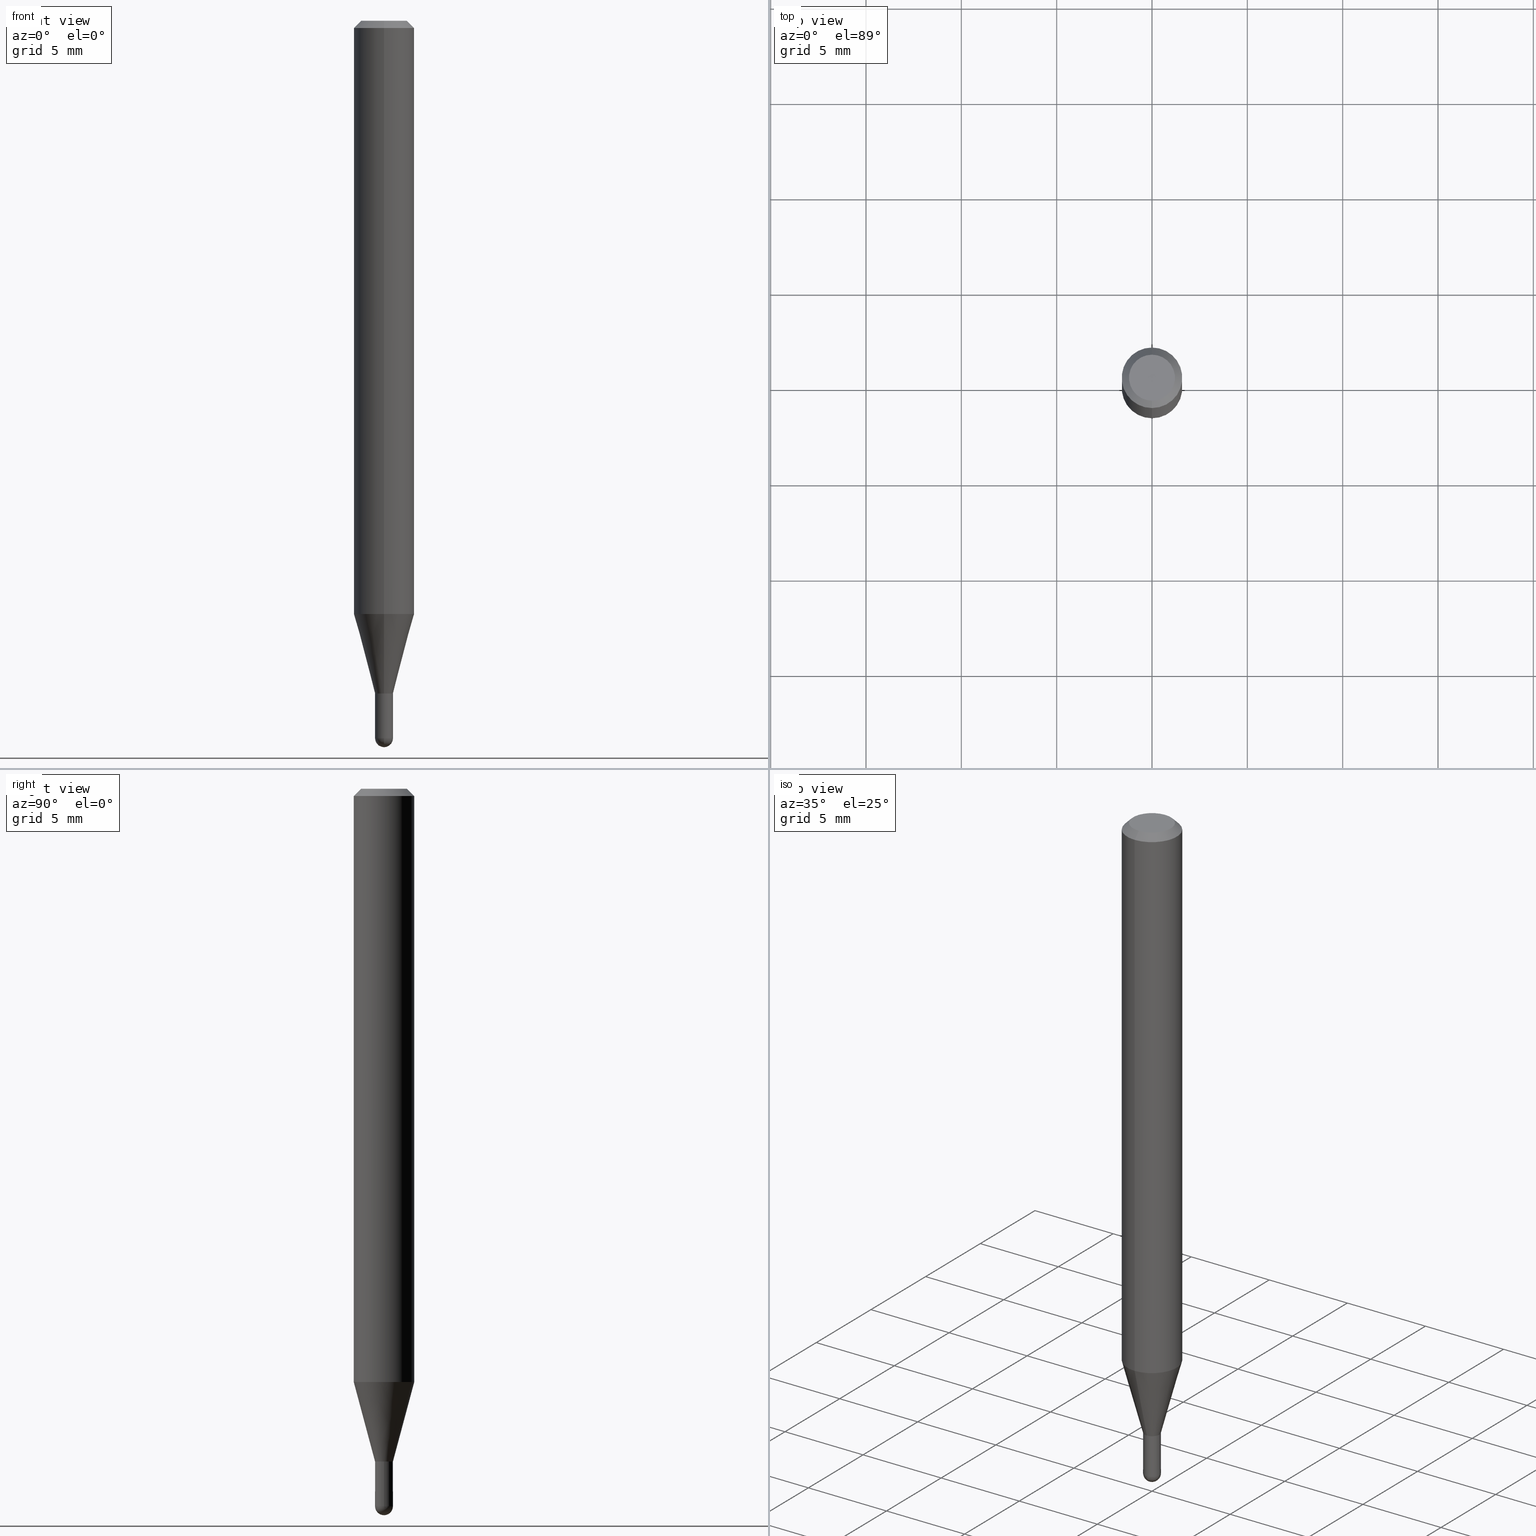
[diagram: canonical four-view strip — front | top / right | iso, engineering-drawing reading convention]
A machine part, canonical four-view strip (front | top / right | iso — engineering-drawing reading convention). The complete STEP part file that produces these views, byte-faithful:
ISO-10303-21;
HEADER;
FILE_DESCRIPTION (( 'STEP AP203' ),
    '1' );
FILE_NAME ('01460.STEP',
    '2024-03-07T21:11:35',
    ( '' ),
    ( '' ),
    'SwSTEP 2.0',
    'SolidWorks 2023',
    '' );
FILE_SCHEMA (( 'CONFIG_CONTROL_DESIGN' ));
ENDSEC;

DATA;
#1 = DIRECTION ( 'NONE',  ( -6.982962677686265922E-15, -1.000000000000000000, 0.000000000000000000 ) ) ;
#2 = LINE ( 'NONE', #398, #367 ) ;
#3 = ADVANCED_FACE ( 'NONE', ( #72 ), #155, .F. ) ;
#4 = CARTESIAN_POINT ( 'NONE',  ( 3.396760682503241373E-29, -4.849661120056686555E-15, -1.389000000000000234 ) ) ;
#5 = FACE_OUTER_BOUND ( 'NONE', #456, .T. ) ;
#6 = MANIFOLD_SOLID_BREP ( 'Body-Move/Copy2[2]', #452 ) ;
#7 = CARTESIAN_POINT ( 'NONE',  ( -4.364351673553618406E-16, -0.06250000000000428824, -1.224789764466974296 ) ) ;
#8 = AXIS2_PLACEMENT_3D ( 'NONE', #188, #354, #32 ) ;
#9 = DIRECTION ( 'NONE',  ( -2.445468806185136597E-29, 3.491481338843145583E-15, 1.000000000000000000 ) ) ;
#10 = AXIS2_PLACEMENT_3D ( 'NONE', #369, #55, #411 ) ;
#11 = CC_DESIGN_APPROVAL ( #257, ( #79 ) ) ;
#12 = EDGE_CURVE ( 'NONE', #290, #351, #2, .T. ) ;
#13 = CARTESIAN_POINT ( 'NONE',  ( 3.396760682503241373E-29, -4.849661120056686555E-15, -1.389000000000000234 ) ) ;
#14 = ORIENTED_EDGE ( 'NONE', *, *, #421, .T. ) ;
#15 = DIRECTION ( 'NONE',  ( -1.000000000000000000, 6.982962677686265922E-15, -4.876176775795935793E-29 ) ) ;
#16 = APPROVAL_ROLE ( '' ) ;
#17 = DIRECTION ( 'NONE',  ( -2.445468806185136597E-29, 3.491481338843145583E-15, 1.000000000000000000 ) ) ;
#18 = APPROVAL_STATUS ( 'not_yet_approved' ) ;
#19 = DIRECTION ( 'NONE',  ( -4.937700262164674260E-15, -0.7071067811865632269, 0.7071067811865319186 ) ) ;
#20 = APPROVAL ( #64, 'UNSPECIFIED' ) ;
#21 = ORIENTED_EDGE ( 'NONE', *, *, #482, .T. ) ;
#22 = CC_DESIGN_DATE_AND_TIME_ASSIGNMENT ( #263, #223, ( #79 ) ) ;
#23 = VECTOR ( 'NONE', #125, 39.37007874015748143 ) ;
#24 = CARTESIAN_POINT ( 'NONE',  ( 3.840629472727447874E-16, 0.04749999999999999362, -1.747056831868805136E-16 ) ) ;
#25 = CIRCLE ( 'NONE', #285, 0.01850000000000018296 ) ;
#26 = ORIENTED_EDGE ( 'NONE', *, *, #341, .T. ) ;
#27 = DIRECTION ( 'NONE',  ( -2.445472053638043115E-29, 3.491476688305749916E-15, 1.000000000000000000 ) ) ;
#28 = ORIENTED_EDGE ( 'NONE', *, *, #374, .T. ) ;
#29 = DIRECTION ( 'NONE',  ( 2.445472053638043115E-29, -3.491476688305749916E-15, -1.000000000000000000 ) ) ;
#30 = CALENDAR_DATE ( 2024, 7, 3 ) ;
#31 = CARTESIAN_POINT ( 'NONE',  ( -1.291848095371618790E-16, -0.01850000000000483549, -1.388500000000000290 ) ) ;
#32 = DIRECTION ( 'NONE',  ( -6.982962677686265922E-15, -1.000000000000000000, 3.491476688305749522E-15 ) ) ;
#33 = COORDINATED_UNIVERSAL_TIME_OFFSET ( 5, 0, .BEHIND. ) ;
#34 = DIRECTION ( 'NONE',  ( -6.982962677686266711E-15, -1.000000000000000000, 0.000000000000000000 ) ) ;
#35 = AXIS2_PLACEMENT_3D ( 'NONE', #260, #9, #171 ) ;
#36 = LOCAL_TIME ( 16, 11, 35.00000000000000000, #215 ) ;
#37 = EDGE_CURVE ( 'NONE', #161, #433, #406, .T. ) ;
#38 = CARTESIAN_POINT ( 'NONE',  ( 2.166820415418826865E-46, -3.093637057485499121E-32, -8.860540492357393280E-18 ) ) ;
#39 = LINE ( 'NONE', #428, #151 ) ;
#40 = EDGE_LOOP ( 'NONE', ( #227, #364, #70, #203, #119 ) ) ;
#41 = DIRECTION ( 'NONE',  ( -2.445468806185136877E-29, 3.491481338843145188E-15, 1.000000000000000000 ) ) ;
#42 = DIRECTION ( 'NONE',  ( -6.982962677686265922E-15, -1.000000000000000000, 3.483106191921935554E-15 ) ) ;
#43 = ORIENTED_EDGE ( 'NONE', *, *, #133, .F. ) ;
#44 = DIRECTION ( 'NONE',  ( -6.982962677686265922E-15, -1.000000000000000000, 0.000000000000000000 ) ) ;
#45 = AXIS2_PLACEMENT_3D ( 'NONE', #169, #439, #239 ) ;
#46 = VERTEX_POINT ( 'NONE', #184 ) ;
#47 = LOCAL_TIME ( 16, 11, 35.00000000000000000, #33 ) ;
#48 = CARTESIAN_POINT ( 'NONE',  ( 3.396756171791154536E-29, -4.849667579653129396E-15, -1.389000000000000234 ) ) ;
#49 = ORIENTED_EDGE ( 'NONE', *, *, #296, .T. ) ;
#50 = VERTEX_POINT ( 'NONE', #212 ) ;
#51 = CYLINDRICAL_SURFACE ( 'NONE', #77, 0.06250000000000000000 ) ;
#52 = ADVANCED_FACE ( 'NONE', ( #297 ), #74, .F. ) ;
#53 = VECTOR ( 'NONE', #19, 39.37007874015748143 ) ;
#54 = VECTOR ( 'NONE', #41, 39.37007874015748143 ) ;
#55 = DIRECTION ( 'NONE',  ( -2.445468806185136597E-29, 3.491481338843145583E-15, 1.000000000000000000 ) ) ;
#56 = APPLICATION_PROTOCOL_DEFINITION ( 'international standard', 'config_control_design', 1994, #304 ) ;
#57 = ORIENTED_EDGE ( 'NONE', *, *, #288, .F. ) ;
#58 = ADVANCED_FACE ( 'NONE', ( #5 ), #137, .T. ) ;
#59 = AXIS2_PLACEMENT_3D ( 'NONE', #360, #504, #396 ) ;
#60 = AXIS2_PLACEMENT_3D ( 'NONE', #264, #502, #506 ) ;
#61 = ORGANIZATION ( 'UNSPECIFIED', 'UNSPECIFIED', '' ) ;
#62 = PERSON_AND_ORGANIZATION ( #214, #61 ) ;
#63 = ADVANCED_FACE ( 'NONE', ( #231 ), #471, .T. ) ;
#64 = APPROVAL_STATUS ( 'not_yet_approved' ) ;
#65 = AXIS2_PLACEMENT_3D ( 'NONE', #128, #282, #167 ) ;
#66 = PERSON_AND_ORGANIZATION ( #214, #61 ) ;
#67 = FACE_OUTER_BOUND ( 'NONE', #201, .T. ) ;
#68 = ORIENTED_EDGE ( 'NONE', *, *, #468, .F. ) ;
#69 = DIRECTION ( 'NONE',  ( -6.982962677686266711E-15, -1.000000000000000000, 3.491476688305750311E-15 ) ) ;
#70 = ORIENTED_EDGE ( 'NONE', *, *, #497, .F. ) ;
#71 = CARTESIAN_POINT ( 'NONE',  ( 3.396760682503241373E-29, -4.849661120056686555E-15, -1.389000000000000234 ) ) ;
#72 = FACE_OUTER_BOUND ( 'NONE', #464, .T. ) ;
#73 = ADVANCED_FACE ( 'NONE', ( #500 ), #276, .T. ) ;
#74 = PLANE ( 'NONE',  #386 ) ;
#75 = DIRECTION ( 'NONE',  ( -4.851104656540964275E-15, -0.7071067811865500152, -0.7071067811865450192 ) ) ;
#76 = CARTESIAN_POINT ( 'NONE',  ( 0.000000000000000000, 0.000000000000000000, 0.000000000000000000 ) ) ;
#77 = AXIS2_PLACEMENT_3D ( 'NONE', #287, #94, #407 ) ;
#78 = CARTESIAN_POINT ( 'NONE',  ( 1.314504061156179855E-16, 0.01849999999999992623, -6.459231873365611550E-17 ) ) ;
#79 = SECURITY_CLASSIFICATION ( '', '', #342 ) ;
#80 = ORIENTED_EDGE ( 'NONE', *, *, #315, .T. ) ;
#81 = LINE ( 'NONE', #236, #53 ) ;
#82 = DIRECTION ( 'NONE',  ( -2.445472053638043115E-29, 3.491476688305749916E-15, 1.000000000000000000 ) ) ;
#83 = EDGE_LOOP ( 'NONE', ( #163, #343, #132, #467 ) ) ;
#84 = EDGE_CURVE ( 'NONE', #196, #181, #493, .T. ) ;
#85 = SPHERICAL_SURFACE ( 'NONE', #425, 0.01850000000000018296 ) ;
#86 = ORIENTED_EDGE ( 'NONE', *, *, #37, .T. ) ;
#87 = DIRECTION ( 'NONE',  ( -2.445472053638043115E-29, 3.491476688305749916E-15, 1.000000000000000000 ) ) ;
#88 = ORIENTED_EDGE ( 'NONE', *, *, #149, .T. ) ;
#89 = AXIS2_PLACEMENT_3D ( 'NONE', #71, #269, #118 ) ;
#90 = DIRECTION ( 'NONE',  ( -2.445472053638042835E-29, 3.491476688305749916E-15, 1.000000000000000000 ) ) ;
#91 = CARTESIAN_POINT ( 'NONE',  ( -1.291848095371614353E-16, -0.01850000000000477304, -1.389000000000000234 ) ) ;
#92 = ORIENTED_EDGE ( 'NONE', *, *, #490, .F. ) ;
#93 = DIRECTION ( 'NONE',  ( 1.000000000000000000, -6.982962677686253300E-15, 0.000000000000000000 ) ) ;
#94 = DIRECTION ( 'NONE',  ( -2.445472053638043115E-29, 3.491476688305749916E-15, 1.000000000000000000 ) ) ;
#95 = DIRECTION ( 'NONE',  ( -1.807323732225379838E-15, -0.2588190451025252914, 0.9659258262890670910 ) ) ;
#96 = ORIENTED_EDGE ( 'NONE', *, *, #133, .T. ) ;
#97 = CONICAL_SURFACE ( 'NONE', #126, 0.01849999999999992623, 0.2617993877991576235 ) ;
#98 = APPROVAL_PERSON_ORGANIZATION ( #182, #330, #487 ) ;
#99 = EDGE_LOOP ( 'NONE', ( #417, #229, #187, #225 ) ) ;
#100 = ADVANCED_FACE ( 'NONE', ( #123 ), #338, .T. ) ;
#101 = DATE_AND_TIME ( #295, #387 ) ;
#102 = DIRECTION ( 'NONE',  ( 0.000000000000000000, 0.000000000000000000, 1.000000000000000000 ) ) ;
#103 = CIRCLE ( 'NONE', #395, 0.06250000000000000000 ) ;
#104 = AXIS2_PLACEMENT_3D ( 'NONE', #404, #87, #44 ) ;
#105 = DIRECTION ( 'NONE',  ( 1.000000000000000000, 0.000000000000000000, 0.000000000000000000 ) ) ;
#106 = FACE_OUTER_BOUND ( 'NONE', #498, .T. ) ;
#107 = PRODUCT_DEFINITION ( 'UNKNOWN', '', #420, #113 ) ;
#108 = EDGE_LOOP ( 'NONE', ( #403, #68, #457, #272 ) ) ;
#109 = CARTESIAN_POINT ( 'NONE',  ( 4.440892098500927901E-16, 0.06249999999999995837, -0.01500000000000022669 ) ) ;
#110 = CARTESIAN_POINT ( 'NONE',  ( -1.256933281983188226E-16, -0.01800000000000484893, -1.389000000000000234 ) ) ;
#111 = ORIENTED_EDGE ( 'NONE', *, *, #421, .F. ) ;
#112 = DIRECTION ( 'NONE',  ( 6.982962677686265922E-15, 1.000000000000000000, -3.483106191921935554E-15 ) ) ;
#113 = DESIGN_CONTEXT ( 'detailed design', #304, 'design' ) ;
#114 = AXIS2_PLACEMENT_3D ( 'NONE', #299, #308, #245 ) ;
#115 = DIRECTION ( 'NONE',  ( 1.000000000000000000, -6.982962677686253300E-15, 0.000000000000000000 ) ) ;
#116 = ORIENTED_EDGE ( 'NONE', *, *, #379, .T. ) ;
#117 = CC_DESIGN_PERSON_AND_ORGANIZATION_ASSIGNMENT ( #176, #253, ( #183 ) ) ;
#118 = DIRECTION ( 'NONE',  ( -6.982962677686265922E-15, -1.000000000000000000, 0.000000000000000000 ) ) ;
#119 = ORIENTED_EDGE ( 'NONE', *, *, #490, .T. ) ;
#120 = EDGE_LOOP ( 'NONE', ( #235, #21, #92, #258 ) ) ;
#121 = CARTESIAN_POINT ( 'NONE',  ( 4.440892098500922971E-16, 0.06249999999999570482, -1.224789764466974962 ) ) ;
#122 = ORIENTED_EDGE ( 'NONE', *, *, #273, .F. ) ;
#123 = FACE_OUTER_BOUND ( 'NONE', #436, .T. ) ;
#124 = SHAPE_DEFINITION_REPRESENTATION ( #217, #450 ) ;
#125 = DIRECTION ( 'NONE',  ( -2.445472053638043115E-29, 3.491476688305749916E-15, 1.000000000000000000 ) ) ;
#126 = AXIS2_PLACEMENT_3D ( 'NONE', #459, #154, #318 ) ;
#127 = CC_DESIGN_PERSON_AND_ORGANIZATION_ASSIGNMENT ( #179, #136, ( #420 ) ) ;
#128 = CARTESIAN_POINT ( 'NONE',  ( 0.000000000000000000, 0.000000000000000000, 0.000000000000000000 ) ) ;
#129 = DIRECTION ( 'NONE',  ( -2.445472053638043115E-29, 3.491476688305749916E-15, 1.000000000000000000 ) ) ;
#130 = CARTESIAN_POINT ( 'NONE',  ( 2.995189140585907376E-29, -4.276324910711931920E-15, -1.224789764466974740 ) ) ;
#131 = AXIS2_PLACEMENT_3D ( 'NONE', #261, #17, #496 ) ;
#132 = ORIENTED_EDGE ( 'NONE', *, *, #158, .T. ) ;
#133 = EDGE_CURVE ( 'NONE', #344, #268, #81, .T. ) ;
#134 = PLANE ( 'NONE',  #453 ) ;
#135 = DIRECTION ( 'NONE',  ( -2.445468806185136597E-29, 3.491481338843145583E-15, 1.000000000000000000 ) ) ;
#136 = PERSON_AND_ORGANIZATION_ROLE ( 'design_supplier' ) ;
#137 = CONICAL_SURFACE ( 'NONE', #300, 0.06250000000000000000, 0.7853981633974483900 ) ;
#138 = EDGE_CURVE ( 'NONE', #290, #50, #220, .T. ) ;
#139 = VERTEX_POINT ( 'NONE', #494 ) ;
#140 = PERSON_AND_ORGANIZATION_ROLE ( 'creator' ) ;
#141 = PRODUCT_RELATED_PRODUCT_CATEGORY ( 'detail', '', ( #183 ) ) ;
#142 = ORIENTED_EDGE ( 'NONE', *, *, #158, .F. ) ;
#143 = CIRCLE ( 'NONE', #114, 0.01849999999999992623 ) ;
#144 = MECHANICAL_CONTEXT ( 'NONE', #145, 'mechanical' ) ;
#145 = APPLICATION_CONTEXT ( 'configuration controlled 3d designs of mechanical parts and assemblies' ) ;
#146 = DIRECTION ( 'NONE',  ( 1.000000000000000000, -6.982962677686253300E-15, 0.000000000000000000 ) ) ;
#147 =( NAMED_UNIT ( * ) PLANE_ANGLE_UNIT ( ) SI_UNIT ( $, .RADIAN. ) );
#148 = ORIENTED_EDGE ( 'NONE', *, *, #454, .T. ) ;
#149 = EDGE_CURVE ( 'NONE', #180, #437, #316, .T. ) ;
#150 = CLOSED_SHELL ( 'NONE', ( #461, #168, #416, #384, #194 ) ) ;
#151 = VECTOR ( 'NONE', #153, 39.37007874015748143 ) ;
#152 = CIRCLE ( 'NONE', #512, 0.01850000000000018296 ) ;
#153 = DIRECTION ( 'NONE',  ( -2.445472053638043115E-29, 3.491476688305749916E-15, 1.000000000000000000 ) ) ;
#154 = DIRECTION ( 'NONE',  ( -2.445472053638043115E-29, 3.491476688305749916E-15, 1.000000000000000000 ) ) ;
#155 = CYLINDRICAL_SURFACE ( 'NONE', #501, 0.01849999999999992623 ) ;
#156 = DIRECTION ( 'NONE',  ( -2.445472053638043115E-29, 3.491476688305749916E-15, 1.000000000000000000 ) ) ;
#157 = UNCERTAINTY_MEASURE_WITH_UNIT (LENGTH_MEASURE( 1.000000000000000082E-05 ), #256, 'distance_accuracy_value', 'NONE');
#158 = EDGE_CURVE ( 'NONE', #433, #161, #292, .T. ) ;
#159 = DIRECTION ( 'NONE',  ( -2.445468806185136597E-29, 3.491481338843145583E-15, 1.000000000000000000 ) ) ;
#160 = DIRECTION ( 'NONE',  ( 1.839019923739650408E-15, 0.2588190451025320082, 0.9659258262890650926 ) ) ;
#161 = VERTEX_POINT ( 'NONE', #109 ) ;
#162 = CARTESIAN_POINT ( 'NONE',  ( 3.668208080457066968E-31, -5.237215032458628178E-17, -0.01500000000000000812 ) ) ;
#163 = ORIENTED_EDGE ( 'NONE', *, *, #84, .F. ) ;
#164 = VECTOR ( 'NONE', #478, 39.37007874015748143 ) ;
#165 = LOCAL_TIME ( 16, 11, 35.00000000000000000, #317 ) ;
#166 = CARTESIAN_POINT ( 'NONE',  ( 3.622962036363280209E-29, -5.172629603496120178E-15, -1.481500000000000039 ) ) ;
#167 = DIRECTION ( 'NONE',  ( -6.982962677686265922E-15, -1.000000000000000000, 3.491476688305749916E-15 ) ) ;
#168 = ADVANCED_FACE ( 'NONE', ( #415 ), #207, .T. ) ;
#169 = CARTESIAN_POINT ( 'NONE',  ( 0.000000000000000000, 0.000000000000000000, 0.000000000000000000 ) ) ;
#170 = AXIS2_PLACEMENT_3D ( 'NONE', #455, #102, #105 ) ;
#171 = DIRECTION ( 'NONE',  ( 1.000000000000000000, -6.982962677686266711E-15, 4.876176775795935232E-29 ) ) ;
#172 = DIRECTION ( 'NONE',  ( 1.000000000000000000, -6.982962677686254089E-15, 0.000000000000000000 ) ) ;
#173 = ORIENTED_EDGE ( 'NONE', *, *, #307, .F. ) ;
#174 = EDGE_CURVE ( 'NONE', #139, #394, #479, .T. ) ;
#175 = PERSON_AND_ORGANIZATION ( #214, #61 ) ;
#176 = PERSON_AND_ORGANIZATION ( #214, #61 ) ;
#177 = AXIS2_PLACEMENT_3D ( 'NONE', #275, #434, #399 ) ;
#178 =( GEOMETRIC_REPRESENTATION_CONTEXT ( 3 ) GLOBAL_UNCERTAINTY_ASSIGNED_CONTEXT ( ( #157 ) ) GLOBAL_UNIT_ASSIGNED_CONTEXT ( ( #256, #147, #370 ) ) REPRESENTATION_CONTEXT ( 'NONE', 'WORKASPACE' ) );
#179 = PERSON_AND_ORGANIZATION ( #214, #61 ) ;
#180 = VERTEX_POINT ( 'NONE', #91 ) ;
#181 = VERTEX_POINT ( 'NONE', #24 ) ;
#182 = PERSON_AND_ORGANIZATION ( #214, #61 ) ;
#183 = PRODUCT ( '01460', '01460', '', ( #144 ) ) ;
#184 = CARTESIAN_POINT ( 'NONE',  ( 1.314504061156554071E-16, 0.01849999999999491981, -1.481500000000000039 ) ) ;
#185 = CARTESIAN_POINT ( 'NONE',  ( 3.622962036363280209E-29, -5.172629603496120178E-15, -1.481500000000000039 ) ) ;
#186 = EDGE_CURVE ( 'NONE', #268, #50, #143, .T. ) ;
#187 = ORIENTED_EDGE ( 'NONE', *, *, #391, .F. ) ;
#188 = CARTESIAN_POINT ( 'NONE',  ( 0.000000000000000000, 0.000000000000000000, 0.000000000000000000 ) ) ;
#189 = CARTESIAN_POINT ( 'NONE',  ( 3.396760682503241373E-29, -4.849661120056686555E-15, -1.389000000000000234 ) ) ;
#190 = CONICAL_SURFACE ( 'NONE', #375, 0.06250000000000000000, 0.7853981633974483900 ) ;
#191 = CALENDAR_DATE ( 2024, 7, 3 ) ;
#192 = DIRECTION ( 'NONE',  ( -2.445472053638043115E-29, 3.491476688305749916E-15, 1.000000000000000000 ) ) ;
#193 = ORIENTED_EDGE ( 'NONE', *, *, #216, .F. ) ;
#194 = ADVANCED_FACE ( 'NONE', ( #106 ), #410, .T. ) ;
#195 = FACE_OUTER_BOUND ( 'NONE', #466, .T. ) ;
#196 = VERTEX_POINT ( 'NONE', #469 ) ;
#197 = FACE_OUTER_BOUND ( 'NONE', #99, .T. ) ;
#198 = AXIS2_PLACEMENT_3D ( 'NONE', #38, #156, #321 ) ;
#199 = DIRECTION ( 'NONE',  ( 1.000000000000000000, -7.105427357601001070E-15, 4.926315508542082329E-29 ) ) ;
#200 = AXIS2_PLACEMENT_3D ( 'NONE', #414, #244, #15 ) ;
#201 = EDGE_LOOP ( 'NONE', ( #476, #26, #440, #122 ) ) ;
#202 = DIRECTION ( 'NONE',  ( 1.000000000000000000, -6.982962677686265922E-15, 4.883557194083112901E-29 ) ) ;
#203 = ORIENTED_EDGE ( 'NONE', *, *, #241, .F. ) ;
#204 = EDGE_CURVE ( 'NONE', #196, #433, #435, .T. ) ;
#205 = PLANE ( 'NONE',  #200 ) ;
#206 = CARTESIAN_POINT ( 'NONE',  ( 3.668208080457066968E-31, -5.237215032458628178E-17, -0.01500000000000000812 ) ) ;
#207 = SPHERICAL_SURFACE ( 'NONE', #463, 0.01850000000000018296 ) ;
#208 = AXIS2_PLACEMENT_3D ( 'NONE', #185, #352, #115 ) ;
#209 = CC_DESIGN_PERSON_AND_ORGANIZATION_ASSIGNMENT ( #305, #140, ( #107 ) ) ;
#210 = CARTESIAN_POINT ( 'NONE',  ( 3.621379978728298144E-29, -5.174895200074542438E-15, -1.481500000000000039 ) ) ;
#211 = DIRECTION ( 'NONE',  ( -6.982962677686265922E-15, -1.000000000000000000, 0.000000000000000000 ) ) ;
#212 = CARTESIAN_POINT ( 'NONE',  ( 1.314504061156515121E-16, 0.01849999999999501349, -1.388500000000000290 ) ) ;
#213 = AXIS2_PLACEMENT_3D ( 'NONE', #366, #27, #509 ) ;
#214 = PERSON ( 'UNSPECIFIED', 'UNSPECIFIED', 'UNSPECIFIED', ('UNSPECIFIED'), ('UNSPECIFIED'), ('UNSPECIFIED') ) ;
#215 = COORDINATED_UNIVERSAL_TIME_OFFSET ( 5, 0, .BEHIND. ) ;
#216 = EDGE_CURVE ( 'NONE', #489, #302, #393, .T. ) ;
#217 = PRODUCT_DEFINITION_SHAPE ( 'NONE', 'NONE',  #107 ) ;
#218 = ORIENTED_EDGE ( 'NONE', *, *, #222, .F. ) ;
#219 = APPROVAL_STATUS ( 'not_yet_approved' ) ;
#220 = LINE ( 'NONE', #78, #310 ) ;
#221 = AXIS2_PLACEMENT_3D ( 'NONE', #267, #82, #69 ) ;
#222 = EDGE_CURVE ( 'NONE', #180, #268, #39, .T. ) ;
#223 = DATE_TIME_ROLE ( 'classification_date' ) ;
#224 = DIRECTION ( 'NONE',  ( -6.982962677686265922E-15, -1.000000000000000000, 4.370956789862821150E-15 ) ) ;
#225 = ORIENTED_EDGE ( 'NONE', *, *, #149, .F. ) ;
#226 = CARTESIAN_POINT ( 'NONE',  ( -4.287811248607203282E-16, -0.06250000000000005551, -0.01499999999999979128 ) ) ;
#227 = ORIENTED_EDGE ( 'NONE', *, *, #273, .T. ) ;
#228 = CARTESIAN_POINT ( 'NONE',  ( 3.665830122825232919E-29, -5.240620403132353144E-15, -1.500000000000000222 ) ) ;
#229 = ORIENTED_EDGE ( 'NONE', *, *, #12, .T. ) ;
#230 = CC_DESIGN_DATE_AND_TIME_ASSIGNMENT ( #101, #451, ( #107 ) ) ;
#231 = FACE_OUTER_BOUND ( 'NONE', #280, .T. ) ;
#232 = AXIS2_PLACEMENT_3D ( 'NONE', #238, #402, #42 ) ;
#233 = CARTESIAN_POINT ( 'NONE',  ( 3.621379978728298144E-29, -5.174895200074542438E-15, -1.481500000000000039 ) ) ;
#234 = DIRECTION ( 'NONE',  ( -6.982962677686265922E-15, -1.000000000000000000, 3.491476688305749916E-15 ) ) ;
#235 = ORIENTED_EDGE ( 'NONE', *, *, #341, .F. ) ;
#236 = CARTESIAN_POINT ( 'NONE',  ( -1.256933281983188226E-16, -0.01800000000000484893, -1.389000000000000234 ) ) ;
#237 = CARTESIAN_POINT ( 'NONE',  ( 0.01849999999999999908, -4.978852389190325393E-15, -1.389000000000000234 ) ) ;
#238 = CARTESIAN_POINT ( 'NONE',  ( 3.668208080457066968E-31, -5.237215032458628178E-17, -0.01500000000000000812 ) ) ;
#239 = DIRECTION ( 'NONE',  ( 1.000000000000000000, -6.982962677686266711E-15, 4.876176775795935232E-29 ) ) ;
#240 = VERTEX_POINT ( 'NONE', #237 ) ;
#241 = EDGE_CURVE ( 'NONE', #394, #240, #462, .T. ) ;
#242 = DIRECTION ( 'NONE',  ( -2.445468806185136597E-29, 3.491481338843145583E-15, 1.000000000000000000 ) ) ;
#243 = CIRCLE ( 'NONE', #473, 0.01800000000000000211 ) ;
#244 = DIRECTION ( 'NONE',  ( 2.438088387897960049E-29, -3.491481338843145188E-15, -1.000000000000000000 ) ) ;
#245 = DIRECTION ( 'NONE',  ( -6.982962677686265922E-15, -1.000000000000000000, 0.000000000000000000 ) ) ;
#246 = CYLINDRICAL_SURFACE ( 'NONE', #45, 0.01849999999999999908 ) ;
#247 = ORIENTED_EDGE ( 'NONE', *, *, #12, .F. ) ;
#248 = FACE_OUTER_BOUND ( 'NONE', #353, .T. ) ;
#249 = CIRCLE ( 'NONE', #208, 0.01850000000000000255 ) ;
#250 = CIRCLE ( 'NONE', #324, 0.01850000000000000255 ) ;
#251 = DIRECTION ( 'NONE',  ( -2.445472053638043115E-29, 3.491476688305749916E-15, 1.000000000000000000 ) ) ;
#252 = LENGTH_MEASURE_WITH_UNIT ( LENGTH_MEASURE( 0.02539999999999999897 ), #334 );
#253 = PERSON_AND_ORGANIZATION_ROLE ( 'design_owner' ) ;
#254 = ORIENTED_EDGE ( 'NONE', *, *, #427, .F. ) ;
#255 = COORDINATED_UNIVERSAL_TIME_OFFSET ( 5, 0, .BEHIND. ) ;
#256 =( CONVERSION_BASED_UNIT ( 'INCH', #252 ) LENGTH_UNIT ( ) NAMED_UNIT ( #271 ) );
#257 = APPROVAL ( #219, 'UNSPECIFIED' ) ;
#258 = ORIENTED_EDGE ( 'NONE', *, *, #174, .F. ) ;
#259 = AXIS2_PLACEMENT_3D ( 'NONE', #48, #135, #172 ) ;
#260 = CARTESIAN_POINT ( 'NONE',  ( 0.000000000000000000, 0.000000000000000000, 0.000000000000000000 ) ) ;
#261 = CARTESIAN_POINT ( 'NONE',  ( 3.622962036363280209E-29, -5.172629603496120178E-15, -1.481500000000000039 ) ) ;
#262 = ADVANCED_FACE ( 'NONE', ( #197 ), #323, .T. ) ;
#263 = DATE_AND_TIME ( #191, #47 ) ;
#264 = CARTESIAN_POINT ( 'NONE',  ( 3.396760682503241373E-29, -4.849661120056686555E-15, -1.389000000000000234 ) ) ;
#265 = VERTEX_POINT ( 'NONE', #228 ) ;
#266 = CIRCLE ( 'NONE', #339, 0.01849999999999992623 ) ;
#267 = CARTESIAN_POINT ( 'NONE',  ( 2.166820415418826865E-46, -3.093637057485499121E-32, -8.860540492357393280E-18 ) ) ;
#268 = VERTEX_POINT ( 'NONE', #31 ) ;
#269 = DIRECTION ( 'NONE',  ( -2.445472053638043115E-29, 3.491476688305749916E-15, 1.000000000000000000 ) ) ;
#270 = CARTESIAN_POINT ( 'NONE',  ( 4.364351673553919652E-16, 0.06249999999999995143, -0.01500000000000022669 ) ) ;
#271 = DIMENSIONAL_EXPONENTS ( 1.000000000000000000, 0.000000000000000000, 0.000000000000000000, 0.000000000000000000, 0.000000000000000000, 0.000000000000000000, 0.000000000000000000 ) ;
#272 = ORIENTED_EDGE ( 'NONE', *, *, #186, .T. ) ;
#273 = EDGE_CURVE ( 'NONE', #46, #489, #249, .T. ) ;
#274 = ORIENTED_EDGE ( 'NONE', *, *, #241, .T. ) ;
#275 = CARTESIAN_POINT ( 'NONE',  ( 3.396760682503241373E-29, -4.849661120056686555E-15, -1.389000000000000234 ) ) ;
#276 = CONICAL_SURFACE ( 'NONE', #59, 0.01800000000000000211, 0.7853981633974739252 ) ;
#277 = CIRCLE ( 'NONE', #10, 0.01849999999999999908 ) ;
#278 = FACE_OUTER_BOUND ( 'NONE', #83, .T. ) ;
#279 = CARTESIAN_POINT ( 'NONE',  ( 1.296740492762519750E-16, 0.01799999999999515182, -1.389000000000000234 ) ) ;
#280 = EDGE_LOOP ( 'NONE', ( #385, #116, #142, #254 ) ) ;
#281 = EDGE_CURVE ( 'NONE', #405, #344, #301, .T. ) ;
#282 = DIRECTION ( 'NONE',  ( -2.445472053638043115E-29, 3.491476688305749916E-15, 1.000000000000000000 ) ) ;
#283 = CIRCLE ( 'NONE', #60, 0.01849999999999992623 ) ;
#284 = CARTESIAN_POINT ( 'NONE',  ( -0.01850000000000000255, -4.879698185459006925E-15, -1.481500000000000039 ) ) ;
#285 = AXIS2_PLACEMENT_3D ( 'NONE', #480, #199, #475 ) ;
#286 = ORIENTED_EDGE ( 'NONE', *, *, #138, .T. ) ;
#287 = CARTESIAN_POINT ( 'NONE',  ( 0.000000000000000000, 0.000000000000000000, 0.000000000000000000 ) ) ;
#288 = EDGE_CURVE ( 'NONE', #181, #196, #331, .T. ) ;
#289 = CARTESIAN_POINT ( 'NONE',  ( 0.01850000000000000255, -5.140333401111821179E-15, -1.481500000000000039 ) ) ;
#290 = VERTEX_POINT ( 'NONE', #430 ) ;
#291 = PERSON_AND_ORGANIZATION ( #214, #61 ) ;
#292 = CIRCLE ( 'NONE', #368, 0.06250000000000000000 ) ;
#293 = CIRCLE ( 'NONE', #259, 0.01849999999999999908 ) ;
#294 = DIRECTION ( 'NONE',  ( -2.445472053638043115E-29, 3.491476688305749916E-15, 1.000000000000000000 ) ) ;
#295 = CALENDAR_DATE ( 2024, 7, 3 ) ;
#296 = EDGE_CURVE ( 'NONE', #344, #405, #243, .T. ) ;
#297 = FACE_OUTER_BOUND ( 'NONE', #460, .T. ) ;
#298 = APPLICATION_PROTOCOL_DEFINITION ( 'international standard', 'config_control_design', 1994, #145 ) ;
#299 = CARTESIAN_POINT ( 'NONE',  ( 3.395537946476423123E-29, -4.847915381712533543E-15, -1.388500000000000290 ) ) ;
#300 = AXIS2_PLACEMENT_3D ( 'NONE', #206, #29, #112 ) ;
#301 = CIRCLE ( 'NONE', #213, 0.01800000000000000211 ) ;
#302 = VERTEX_POINT ( 'NONE', #388 ) ;
#303 = CC_DESIGN_APPROVAL ( #330, ( #107 ) ) ;
#304 = APPLICATION_CONTEXT ( 'configuration controlled 3d designs of mechanical parts and assemblies' ) ;
#305 = PERSON_AND_ORGANIZATION ( #214, #61 ) ;
#306 = CARTESIAN_POINT ( 'NONE',  ( 3.668208080457066968E-31, -5.237215032458628178E-17, -0.01500000000000000812 ) ) ;
#307 = EDGE_CURVE ( 'NONE', #351, #437, #503, .T. ) ;
#308 = DIRECTION ( 'NONE',  ( -2.445472053638043115E-29, 3.491476688305749916E-15, 1.000000000000000000 ) ) ;
#309 = EDGE_LOOP ( 'NONE', ( #448, #492 ) ) ;
#310 = VECTOR ( 'NONE', #294, 39.37007874015748143 ) ;
#311 = CIRCLE ( 'NONE', #357, 0.01850000000000000255 ) ;
#312 = APPROVAL_PERSON_ORGANIZATION ( #62, #20, #16 ) ;
#313 = DIRECTION ( 'NONE',  ( 2.445472053638043115E-29, -3.491476688305749916E-15, -1.000000000000000000 ) ) ;
#314 = ORIENTED_EDGE ( 'NONE', *, *, #379, .F. ) ;
#315 = EDGE_CURVE ( 'NONE', #290, #180, #283, .T. ) ;
#316 = LINE ( 'NONE', #442, #413 ) ;
#317 = COORDINATED_UNIVERSAL_TIME_OFFSET ( 5, 0, .BEHIND. ) ;
#318 = DIRECTION ( 'NONE',  ( -6.982962677686265922E-15, -1.000000000000000000, 0.000000000000000000 ) ) ;
#319 = ORIENTED_EDGE ( 'NONE', *, *, #281, .T. ) ;
#320 = ORIENTED_EDGE ( 'NONE', *, *, #186, .F. ) ;
#321 = DIRECTION ( 'NONE',  ( -6.982962677686266711E-15, -1.000000000000000000, 3.491476688305750311E-15 ) ) ;
#322 = LINE ( 'NONE', #472, #23 ) ;
#323 = CONICAL_SURFACE ( 'NONE', #89, 0.01849999999999992623, 0.2617993877991576235 ) ;
#324 = AXIS2_PLACEMENT_3D ( 'NONE', #166, #242, #93 ) ;
#325 = FACE_OUTER_BOUND ( 'NONE', #108, .T. ) ;
#326 = DIRECTION ( 'NONE',  ( -2.445472053638043115E-29, 3.491476688305749916E-15, 1.000000000000000000 ) ) ;
#327 = ADVANCED_FACE ( 'NONE', ( #278 ), #190, .T. ) ;
#328 = DIRECTION ( 'NONE',  ( -6.982962677686265922E-15, -1.000000000000000000, 4.370956789862821150E-15 ) ) ;
#329 = LINE ( 'NONE', #408, #347 ) ;
#330 = APPROVAL ( #18, 'UNSPECIFIED' ) ;
#331 = CIRCLE ( 'NONE', #221, 0.04749999999999999362 ) ;
#332 = DIRECTION ( 'NONE',  ( -2.445472053638043115E-29, 3.491476688305749916E-15, 1.000000000000000000 ) ) ;
#333 = CC_DESIGN_APPROVAL ( #20, ( #420 ) ) ;
#334 =( LENGTH_UNIT ( ) NAMED_UNIT ( * ) SI_UNIT ( $, .METRE. ) );
#335 = ORIENTED_EDGE ( 'NONE', *, *, #315, .F. ) ;
#336 = APPROVAL_DATE_TIME ( #381, #20 ) ;
#337 = DIRECTION ( 'NONE',  ( -6.982962677686265922E-15, -1.000000000000000000, 3.483106191921935554E-15 ) ) ;
#338 = CONICAL_SURFACE ( 'NONE', #177, 0.01800000000000000211, 0.7853981633974739252 ) ;
#339 = AXIS2_PLACEMENT_3D ( 'NONE', #13, #332, #1 ) ;
#340 = APPROVAL_PERSON_ORGANIZATION ( #66, #257, #349 ) ;
#341 = EDGE_CURVE ( 'NONE', #265, #139, #152, .T. ) ;
#342 = SECURITY_CLASSIFICATION_LEVEL ( 'unclassified' ) ;
#343 = ORIENTED_EDGE ( 'NONE', *, *, #204, .T. ) ;
#344 = VERTEX_POINT ( 'NONE', #110 ) ;
#345 = ADVANCED_FACE ( 'NONE', ( #195 ), #97, .T. ) ;
#346 = DATE_AND_TIME ( #380, #36 ) ;
#347 = VECTOR ( 'NONE', #378, 39.37007874015748143 ) ;
#348 = MANIFOLD_SOLID_BREP ( 'Body-Move/Copy2[1]', #150 ) ;
#349 = APPROVAL_ROLE ( '' ) ;
#350 = DIRECTION ( 'NONE',  ( 1.000000000000000000, -6.982962677686265922E-15, 4.883557194083112901E-29 ) ) ;
#351 = VERTEX_POINT ( 'NONE', #121 ) ;
#352 = DIRECTION ( 'NONE',  ( -2.445468806185136597E-29, 3.491481338843145583E-15, 1.000000000000000000 ) ) ;
#353 = EDGE_LOOP ( 'NONE', ( #314, #429, #470, #412 ) ) ;
#354 = DIRECTION ( 'NONE',  ( -2.445472053638043115E-29, 3.491476688305749916E-15, 1.000000000000000000 ) ) ;
#355 = CARTESIAN_POINT ( 'NONE',  ( 2.995189140585907376E-29, -4.276324910711931920E-15, -1.224789764466974740 ) ) ;
#356 = EDGE_LOOP ( 'NONE', ( #449, #14 ) ) ;
#357 = AXIS2_PLACEMENT_3D ( 'NONE', #363, #159, #146 ) ;
#358 = CC_DESIGN_PERSON_AND_ORGANIZATION_ASSIGNMENT ( #291, #488, ( #79 ) ) ;
#359 = CIRCLE ( 'NONE', #104, 0.01849999999999992623 ) ;
#360 = CARTESIAN_POINT ( 'NONE',  ( 3.396760682503241373E-29, -4.849661120056686555E-15, -1.389000000000000234 ) ) ;
#361 = DIRECTION ( 'NONE',  ( 6.982962677686265922E-15, 1.000000000000000000, -3.483106191921935554E-15 ) ) ;
#362 = CARTESIAN_POINT ( 'NONE',  ( 3.316907271900976096E-16, 0.04749999999999999362, -1.702754129407017947E-16 ) ) ;
#363 = CARTESIAN_POINT ( 'NONE',  ( 3.622962036363280209E-29, -5.172629603496120178E-15, -1.481500000000000039 ) ) ;
#364 = ORIENTED_EDGE ( 'NONE', *, *, #216, .T. ) ;
#365 = EDGE_CURVE ( 'NONE', #181, #161, #424, .T. ) ;
#366 = CARTESIAN_POINT ( 'NONE',  ( 3.396760682503241373E-29, -4.849661120056686555E-15, -1.389000000000000234 ) ) ;
#367 = VECTOR ( 'NONE', #160, 39.37007874015748854 ) ;
#368 = AXIS2_PLACEMENT_3D ( 'NONE', #306, #251, #337 ) ;
#369 = CARTESIAN_POINT ( 'NONE',  ( 3.396756171791154536E-29, -4.849667579653129396E-15, -1.389000000000000234 ) ) ;
#370 =( NAMED_UNIT ( * ) SI_UNIT ( $, .STERADIAN. ) SOLID_ANGLE_UNIT ( ) );
#371 = DIRECTION ( 'NONE',  ( -6.982962677686265922E-15, -1.000000000000000000, 0.000000000000000000 ) ) ;
#372 = DIRECTION ( 'NONE',  ( 6.982962677686265922E-15, 1.000000000000000000, -3.491476688305749916E-15 ) ) ;
#373 = CARTESIAN_POINT ( 'NONE',  ( 1.278976924368519941E-16, 0.01799999999999515182, -1.389000000000000234 ) ) ;
#374 = EDGE_CURVE ( 'NONE', #489, #139, #311, .T. ) ;
#375 = AXIS2_PLACEMENT_3D ( 'NONE', #162, #313, #361 ) ;
#376 = FACE_OUTER_BOUND ( 'NONE', #356, .T. ) ;
#377 = LOCAL_TIME ( 16, 11, 35.00000000000000000, #255 ) ;
#378 = DIRECTION ( 'NONE',  ( -2.445472053638043115E-29, 3.491476688305749916E-15, 1.000000000000000000 ) ) ;
#379 = EDGE_CURVE ( 'NONE', #351, #161, #322, .T. ) ;
#380 = CALENDAR_DATE ( 2024, 7, 3 ) ;
#381 = DATE_AND_TIME ( #418, #377 ) ;
#382 = VECTOR ( 'NONE', #75, 39.37007874015748143 ) ;
#383 = ORIENTED_EDGE ( 'NONE', *, *, #454, .F. ) ;
#384 = ADVANCED_FACE ( 'NONE', ( #67 ), #85, .T. ) ;
#385 = ORIENTED_EDGE ( 'NONE', *, *, #391, .T. ) ;
#386 = AXIS2_PLACEMENT_3D ( 'NONE', #362, #508, #372 ) ;
#387 = LOCAL_TIME ( 16, 11, 35.00000000000000000, #458 ) ;
#388 = CARTESIAN_POINT ( 'NONE',  ( -0.01849999999999999908, -4.879698185459006925E-15, -1.389000000000000234 ) ) ;
#389 = EDGE_LOOP ( 'NONE', ( #49, #148, #320, #43 ) ) ;
#390 = CARTESIAN_POINT ( 'NONE',  ( 0.01849999999999999908, -1.291848095371959233E-16, 9.020927035222480096E-31 ) ) ;
#391 = EDGE_CURVE ( 'NONE', #437, #351, #103, .T. ) ;
#392 = ORIENTED_EDGE ( 'NONE', *, *, #174, .T. ) ;
#393 = LINE ( 'NONE', #401, #485 ) ;
#394 = VERTEX_POINT ( 'NONE', #289 ) ;
#395 = AXIS2_PLACEMENT_3D ( 'NONE', #130, #129, #328 ) ;
#396 = DIRECTION ( 'NONE',  ( -6.982962677686265133E-15, -1.000000000000000000, 0.000000000000000000 ) ) ;
#397 = DIRECTION ( 'NONE',  ( 4.937700262164548042E-15, 0.7071067811865451302, -0.7071067811865499042 ) ) ;
#398 = CARTESIAN_POINT ( 'NONE',  ( 1.314504061156519559E-16, 0.01849999999999507594, -1.389000000000000234 ) ) ;
#399 = DIRECTION ( 'NONE',  ( -6.982962677686265133E-15, -1.000000000000000000, 0.000000000000000000 ) ) ;
#400 = ADVANCED_FACE ( 'NONE', ( #481 ), #134, .F. ) ;
#401 = CARTESIAN_POINT ( 'NONE',  ( -0.01849999999999999908, 1.314504061156185279E-16, -9.100029916971574589E-31 ) ) ;
#402 = DIRECTION ( 'NONE',  ( -2.445472053638043115E-29, 3.491476688305749916E-15, 1.000000000000000000 ) ) ;
#403 = ORIENTED_EDGE ( 'NONE', *, *, #138, .F. ) ;
#404 = CARTESIAN_POINT ( 'NONE',  ( 3.395537946476423123E-29, -4.847915381712533543E-15, -1.388500000000000290 ) ) ;
#405 = VERTEX_POINT ( 'NONE', #279 ) ;
#406 = CIRCLE ( 'NONE', #232, 0.06250000000000000000 ) ;
#407 = DIRECTION ( 'NONE',  ( -6.982962677686265922E-15, -1.000000000000000000, 3.491476688305749522E-15 ) ) ;
#408 = CARTESIAN_POINT ( 'NONE',  ( -4.364351673553916201E-16, -0.06250000000000000000, 2.182172930191093451E-16 ) ) ;
#409 = ADVANCED_FACE ( 'NONE', ( #248 ), #51, .T. ) ;
#410 = CYLINDRICAL_SURFACE ( 'NONE', #35, 0.01849999999999999908 ) ;
#411 = DIRECTION ( 'NONE',  ( 1.000000000000000000, -6.982962677686254089E-15, 0.000000000000000000 ) ) ;
#412 = ORIENTED_EDGE ( 'NONE', *, *, #37, .F. ) ;
#413 = VECTOR ( 'NONE', #95, 39.37007874015748143 ) ;
#414 = CARTESIAN_POINT ( 'NONE',  ( 1.291848095372298936E-16, 0.01849999999999515227, -1.389000000000000234 ) ) ;
#415 = FACE_OUTER_BOUND ( 'NONE', #120, .T. ) ;
#416 = ADVANCED_FACE ( 'NONE', ( #376 ), #205, .F. ) ;
#417 = ORIENTED_EDGE ( 'NONE', *, *, #468, .T. ) ;
#418 = CALENDAR_DATE ( 2024, 7, 3 ) ;
#419 = AXIS2_PLACEMENT_3D ( 'NONE', #355, #192, #224 ) ;
#420 = PRODUCT_DEFINITION_FORMATION_WITH_SPECIFIED_SOURCE ( 'ANY', '', #183, .NOT_KNOWN. ) ;
#421 = EDGE_CURVE ( 'NONE', #302, #240, #277, .T. ) ;
#422 = ORIENTED_EDGE ( 'NONE', *, *, #204, .F. ) ;
#423 = DATE_AND_TIME ( #30, #165 ) ;
#424 = LINE ( 'NONE', #270, #441 ) ;
#425 = AXIS2_PLACEMENT_3D ( 'NONE', #210, #202, #371 ) ;
#426 = ORIENTED_EDGE ( 'NONE', *, *, #365, .T. ) ;
#427 = EDGE_CURVE ( 'NONE', #437, #433, #329, .T. ) ;
#428 = CARTESIAN_POINT ( 'NONE',  ( -1.291848095371954056E-16, -0.01849999999999992623, 6.459231873365611550E-17 ) ) ;
#429 = ORIENTED_EDGE ( 'NONE', *, *, #307, .T. ) ;
#430 = CARTESIAN_POINT ( 'NONE',  ( 2.877698079828723853E-16, 0.01849999999999507594, -1.389000000000000234 ) ) ;
#431 = DIRECTION ( 'NONE',  ( -2.445468806185136877E-29, 3.491481338843145188E-15, 1.000000000000000000 ) ) ;
#432 = ORIENTED_EDGE ( 'NONE', *, *, #477, .T. ) ;
#433 = VERTEX_POINT ( 'NONE', #445 ) ;
#434 = DIRECTION ( 'NONE',  ( -2.445472053638043115E-29, 3.491476688305749916E-15, 1.000000000000000000 ) ) ;
#435 = LINE ( 'NONE', #226, #382 ) ;
#436 = EDGE_LOOP ( 'NONE', ( #383, #319, #96, #507 ) ) ;
#437 = VERTEX_POINT ( 'NONE', #7 ) ;
#438 = FACE_OUTER_BOUND ( 'NONE', #40, .T. ) ;
#439 = DIRECTION ( 'NONE',  ( -2.445468806185136597E-29, 3.491481338843145583E-15, 1.000000000000000000 ) ) ;
#440 = ORIENTED_EDGE ( 'NONE', *, *, #374, .F. ) ;
#441 = VECTOR ( 'NONE', #397, 39.37007874015748143 ) ;
#442 = CARTESIAN_POINT ( 'NONE',  ( -1.291848095371614353E-16, -0.01850000000000477304, -1.389000000000000234 ) ) ;
#443 = CC_DESIGN_PERSON_AND_ORGANIZATION_ASSIGNMENT ( #175, #483, ( #420 ) ) ;
#444 = LINE ( 'NONE', #373, #164 ) ;
#445 = CARTESIAN_POINT ( 'NONE',  ( -4.364351673553912750E-16, -0.06250000000000005551, -0.01499999999999979128 ) ) ;
#446 = DIRECTION ( 'NONE',  ( -6.982962677686265922E-15, -1.000000000000000000, 3.491476688305749916E-15 ) ) ;
#447 = ADVANCED_FACE ( 'NONE', ( #325 ), #474, .F. ) ;
#448 = ORIENTED_EDGE ( 'NONE', *, *, #296, .F. ) ;
#449 = ORIENTED_EDGE ( 'NONE', *, *, #497, .T. ) ;
#450 = ADVANCED_BREP_SHAPE_REPRESENTATION ( '01460', ( #348, #6, #170 ), #178 ) ;
#451 = DATE_TIME_ROLE ( 'creation_date' ) ;
#452 = CLOSED_SHELL ( 'NONE', ( #3, #73, #327, #63, #262, #345, #409, #58, #52, #400, #100, #447 ) ) ;
#453 = AXIS2_PLACEMENT_3D ( 'NONE', #4, #90, #446 ) ;
#454 = EDGE_CURVE ( 'NONE', #405, #50, #444, .T. ) ;
#455 = CARTESIAN_POINT ( 'NONE',  ( 0.000000000000000000, 0.000000000000000000, 0.000000000000000000 ) ) ;
#456 = EDGE_LOOP ( 'NONE', ( #422, #57, #426, #86 ) ) ;
#457 = ORIENTED_EDGE ( 'NONE', *, *, #222, .T. ) ;
#458 = COORDINATED_UNIVERSAL_TIME_OFFSET ( 5, 0, .BEHIND. ) ;
#459 = CARTESIAN_POINT ( 'NONE',  ( 3.396760682503241373E-29, -4.849661120056686555E-15, -1.389000000000000234 ) ) ;
#460 = EDGE_LOOP ( 'NONE', ( #484, #510 ) ) ;
#461 = ADVANCED_FACE ( 'NONE', ( #438 ), #246, .T. ) ;
#462 = LINE ( 'NONE', #390, #54 ) ;
#463 = AXIS2_PLACEMENT_3D ( 'NONE', #491, #350, #211 ) ;
#464 = EDGE_LOOP ( 'NONE', ( #335, #286, #432, #218 ) ) ;
#465 = DIRECTION ( 'NONE',  ( -1.000000000000000000, 6.982962677686265922E-15, -4.883557194083112340E-29 ) ) ;
#466 = EDGE_LOOP ( 'NONE', ( #247, #80, #88, #173 ) ) ;
#467 = ORIENTED_EDGE ( 'NONE', *, *, #365, .F. ) ;
#468 = EDGE_CURVE ( 'NONE', #180, #290, #266, .T. ) ;
#469 = CARTESIAN_POINT ( 'NONE',  ( -3.773273898774340269E-16, -0.04749999999999999362, 1.569846022021657363E-16 ) ) ;
#470 = ORIENTED_EDGE ( 'NONE', *, *, #427, .T. ) ;
#471 = CYLINDRICAL_SURFACE ( 'NONE', #8, 0.06250000000000000000 ) ;
#472 = CARTESIAN_POINT ( 'NONE',  ( 4.440892098500625669E-16, 0.06250000000000000000, -2.182172930191093451E-16 ) ) ;
#473 = AXIS2_PLACEMENT_3D ( 'NONE', #189, #511, #499 ) ;
#474 = CYLINDRICAL_SURFACE ( 'NONE', #65, 0.01849999999999992623 ) ;
#475 = DIRECTION ( 'NONE',  ( 7.105427357601001859E-15, 1.000000000000000000, 0.000000000000000000 ) ) ;
#476 = ORIENTED_EDGE ( 'NONE', *, *, #482, .F. ) ;
#477 = EDGE_CURVE ( 'NONE', #50, #268, #359, .T. ) ;
#478 = DIRECTION ( 'NONE',  ( 5.024295867788190974E-15, 0.7071067811865681119, 0.7071067811865270336 ) ) ;
#479 = CIRCLE ( 'NONE', #131, 0.01850000000000000255 ) ;
#480 = CARTESIAN_POINT ( 'NONE',  ( 3.621379978728298144E-29, -5.174895200074542438E-15, -1.481500000000000039 ) ) ;
#481 = FACE_OUTER_BOUND ( 'NONE', #309, .T. ) ;
#482 = EDGE_CURVE ( 'NONE', #265, #46, #25, .T. ) ;
#483 = PERSON_AND_ORGANIZATION_ROLE ( 'creator' ) ;
#484 = ORIENTED_EDGE ( 'NONE', *, *, #288, .T. ) ;
#485 = VECTOR ( 'NONE', #431, 39.37007874015748143 ) ;
#486 = CC_DESIGN_SECURITY_CLASSIFICATION ( #79, ( #420 ) ) ;
#487 = APPROVAL_ROLE ( '' ) ;
#488 = PERSON_AND_ORGANIZATION_ROLE ( 'classification_officer' ) ;
#489 = VERTEX_POINT ( 'NONE', #284 ) ;
#490 = EDGE_CURVE ( 'NONE', #394, #46, #250, .T. ) ;
#491 = CARTESIAN_POINT ( 'NONE',  ( 3.621379978728298144E-29, -5.174895200074542438E-15, -1.481500000000000039 ) ) ;
#492 = ORIENTED_EDGE ( 'NONE', *, *, #281, .F. ) ;
#493 = CIRCLE ( 'NONE', #198, 0.04749999999999999362 ) ;
#494 = CARTESIAN_POINT ( 'NONE',  ( -1.291848095371603260E-16, -0.01850000000000526570, -1.481500000000000039 ) ) ;
#495 = APPROVAL_DATE_TIME ( #346, #330 ) ;
#496 = DIRECTION ( 'NONE',  ( 1.000000000000000000, -6.982962677686253300E-15, 0.000000000000000000 ) ) ;
#497 = EDGE_CURVE ( 'NONE', #240, #302, #293, .T. ) ;
#498 = EDGE_LOOP ( 'NONE', ( #193, #28, #392, #274, #111 ) ) ;
#499 = DIRECTION ( 'NONE',  ( -6.982962677686265133E-15, -1.000000000000000000, 0.000000000000000000 ) ) ;
#500 = FACE_OUTER_BOUND ( 'NONE', #389, .T. ) ;
#501 = AXIS2_PLACEMENT_3D ( 'NONE', #76, #326, #234 ) ;
#502 = DIRECTION ( 'NONE',  ( -2.445472053638043115E-29, 3.491476688305749916E-15, 1.000000000000000000 ) ) ;
#503 = CIRCLE ( 'NONE', #419, 0.06250000000000000000 ) ;
#504 = DIRECTION ( 'NONE',  ( -2.445472053638043115E-29, 3.491476688305749916E-15, 1.000000000000000000 ) ) ;
#505 = APPROVAL_DATE_TIME ( #423, #257 ) ;
#506 = DIRECTION ( 'NONE',  ( -6.982962677686265922E-15, -1.000000000000000000, 0.000000000000000000 ) ) ;
#507 = ORIENTED_EDGE ( 'NONE', *, *, #477, .F. ) ;
#508 = DIRECTION ( 'NONE',  ( 2.445472053638042835E-29, -3.491476688305749916E-15, -1.000000000000000000 ) ) ;
#509 = DIRECTION ( 'NONE',  ( -6.982962677686265133E-15, -1.000000000000000000, 0.000000000000000000 ) ) ;
#510 = ORIENTED_EDGE ( 'NONE', *, *, #84, .T. ) ;
#511 = DIRECTION ( 'NONE',  ( -2.445472053638043115E-29, 3.491476688305749916E-15, 1.000000000000000000 ) ) ;
#512 = AXIS2_PLACEMENT_3D ( 'NONE', #233, #465, #34 ) ;
ENDSEC;
END-ISO-10303-21;
